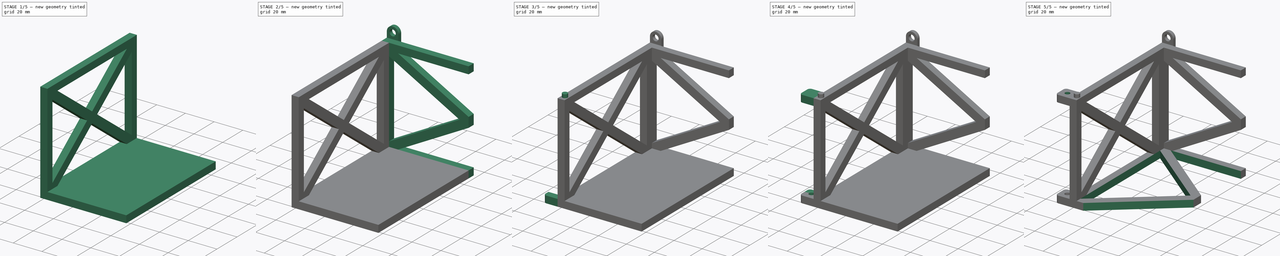
[diagram: build sequence overview — one tinted view per stage of 5, left to right]
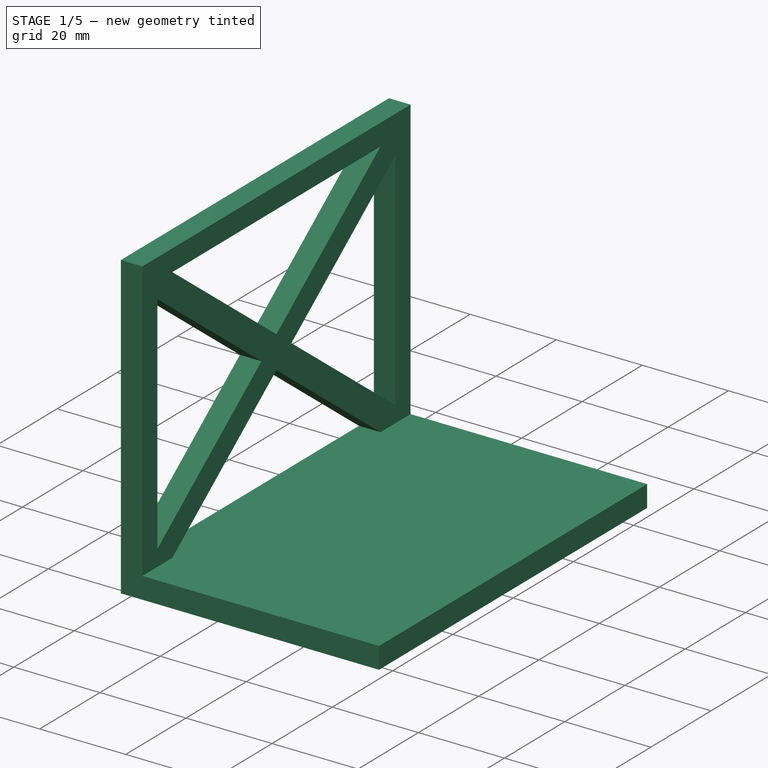
[diagram: stage 1 of 5 — iso view after this stage's code; geometry added in this stage tinted green]
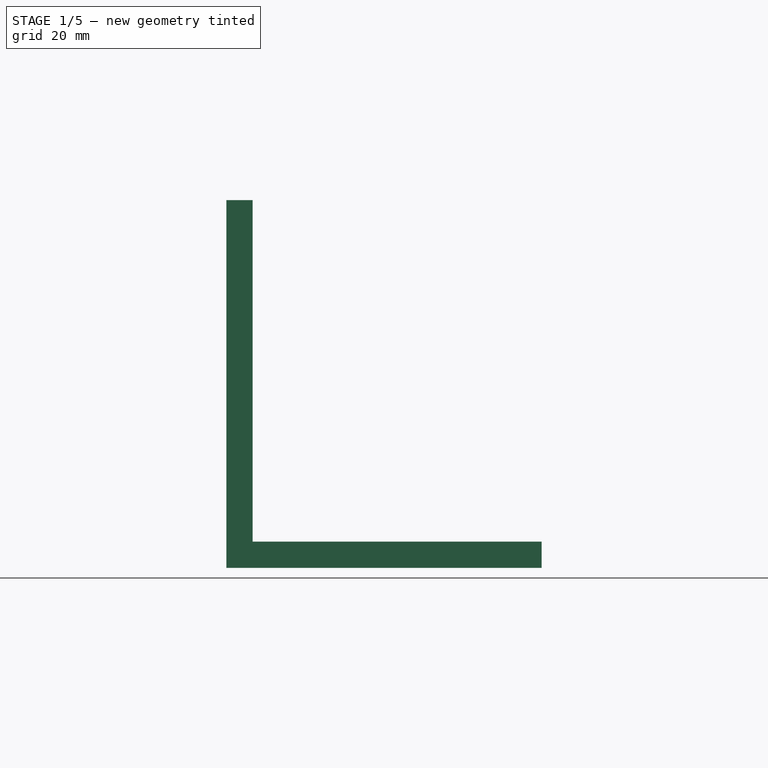
[diagram: stage 1 of 5 — front view after this stage's code; geometry added in this stage tinted green]
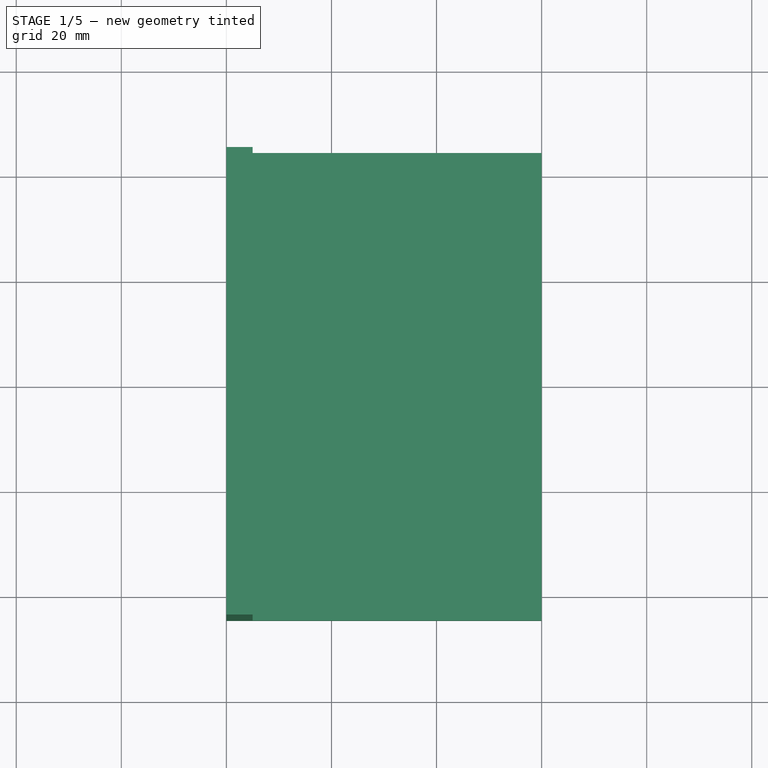
[diagram: stage 1 of 5 — top view after this stage's code; geometry added in this stage tinted green]
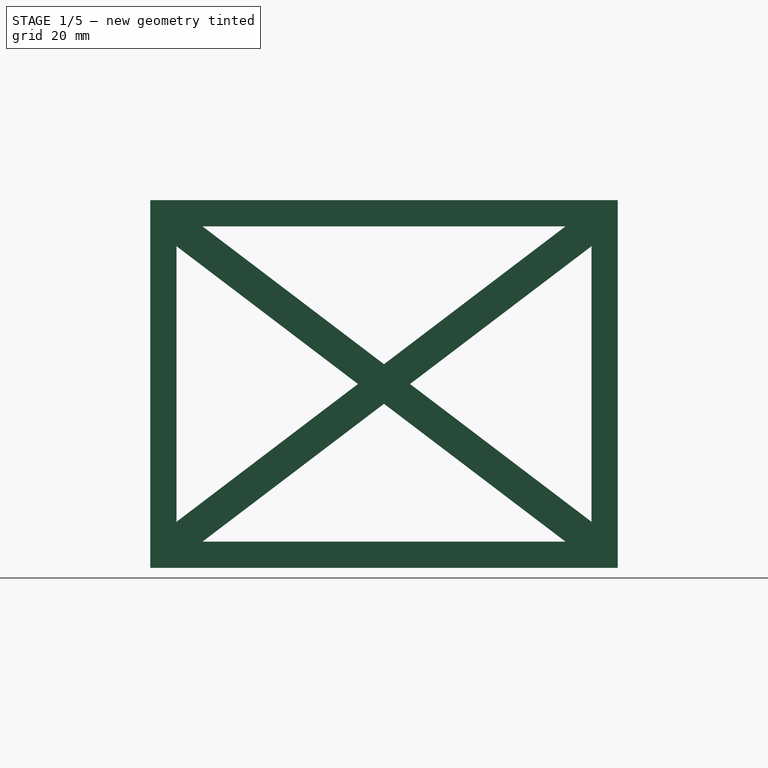
[diagram: stage 1 of 5 — right view after this stage's code; geometry added in this stage tinted green]
FCSTD DOCUMENT  (FreeCAD 0.19R)
Label: Jetson_box_test
License: All rights reserved
LicenseURL: http://en.wikipedia.org/wiki/All_rights_reserved
objects: Sketcher::SketchObject×14, PartDesign::Pad×8, PartDesign::Mirrored×7, PartDesign::Pocket×4, PartDesign::Hole×2, PartDesign::MultiTransform×1, PartDesign::Body×1
note: 51 computed .brp shape members not serialized (recipe doc carries the construction recipe); baked Part::Feature solids carry a one-line shape summary decoded from their .brp

FEATURE [Sketcher::SketchObject] Sketch  label="quart_floor_sketch"
  FullyConstrained = true
  MapMode = 5
  Support = -> [XY_Plane]
  sketch-geometry (4):
    g0: LineSegment StartX=0 StartY=0 StartZ=0 EndX=-55 EndY=0 EndZ=0
    g1: LineSegment StartX=-55 StartY=0 StartZ=0 EndX=-55 EndY=-44.5 EndZ=0
    g2: LineSegment StartX=-55 StartY=-44.5 StartZ=0 EndX=0 EndY=-44.5 EndZ=0
    g3: LineSegment StartX=0 StartY=-44.5 StartZ=0 EndX=0 EndY=0 EndZ=0
  constraints (11):
    c: Coincident(g0,g1)
    c: Coincident(g1,g2)
    c: Coincident(g2,g3)
    c: Coincident(g3,g0)
    c: Horizontal(g0)
    c: Horizontal(g2)
    c: Vertical(g1)
    c: Vertical(g3)
    c: Coincident(g0,g-1)
    c: DistanceY(g1,g1) = 44.5
    c: DistanceX(g2,g2) = 55
FEATURE [PartDesign::Pad] Pad  label="quart_floor"
  Direction = (1,1,1)
  Length = 5
  Length2 = 100
  Profile = -> Sketch
  Type = 0
FEATURE [PartDesign::Mirrored] Mirrored  label="half_floor"
  BaseFeature = -> Pad
  MirrorPlane = -> XZ_Plane
  Originals = -> [Pad]
FEATURE [Sketcher::SketchObject] Sketch001  label="quart_left_wall_sketch"
  ExternalGeometry = -> [Mirrored]
  FullyConstrained = true
  MapMode = 5
  Placement = pos=(-55,0,0) rot=(0.57735,-0.57735,-0.57735;2.0944rad)
  Support = -> [Mirrored]
  sketch-geometry (14):
    g0: LineSegment StartX=0 StartY=0 StartZ=0 EndX=44.5 EndY=0 EndZ=0
    g1: LineSegment StartX=44.5 StartY=0 StartZ=0 EndX=44.5 EndY=35 EndZ=0
    g2: LineSegment StartX=44.5 StartY=35 StartZ=0 EndX=0 EndY=35 EndZ=0
    g3: LineSegment StartX=0 StartY=35 StartZ=0 EndX=0 EndY=0 EndZ=0
    g4: LineSegment StartX=44.5 StartY=35 StartZ=0 EndX=44.5 EndY=5 EndZ=0
    g5: LineSegment StartX=0 StartY=35 StartZ=0 EndX=39.5 EndY=5 EndZ=0
    g6: LineSegment StartX=4.96009 StartY=35 StartZ=0 EndX=39.5 EndY=8.76716 EndZ=0
    g7: LineSegment StartX=0 StartY=31.2328 StartZ=0 EndX=34.5399 EndY=5 EndZ=0
    g8: LineSegment StartX=39.5 StartY=35 StartZ=0 EndX=39.5 EndY=8.76716 EndZ=0
    g9: LineSegment StartX=39.5 StartY=35 StartZ=0 EndX=44.5 EndY=35 EndZ=0
    g10: LineSegment StartX=0 StartY=5 StartZ=0 EndX=34.5399 EndY=5 EndZ=0
    g11: LineSegment StartX=0 StartY=0 StartZ=0 EndX=0 EndY=5 EndZ=0
    g12: LineSegment StartX=0 StartY=31.2328 StartZ=0 EndX=0 EndY=35 EndZ=0
    g13: LineSegment StartX=4.96009 StartY=35 StartZ=0 EndX=0 EndY=35 EndZ=0
  constraints (37):
    c: Coincident(g0,g1)
    c: Coincident(g1,g2)
    c: Coincident(g2,g3)
    c: Coincident(g3,g0)
    c: Horizontal(g0)
    c: Horizontal(g2)
    c: Vertical(g1)
    c: Vertical(g3)
    c: Coincident(g0,g-1)
    c: Vertical(g-3,g0)
    c: Coincident(g4,g1)
    c: DistanceY(g4,g4) = 30
    c: Coincident(g5,g2)
    c: PointOnObject(g6,g2)
    c: PointOnObject(g7,g3)
    c: PointOnObject(g7,g-3)
    c: Parallel(g6,g5)
    c: Parallel(g7,g5)
    c: Distance(g6,g5) = 3
    c: Distance(g7,g5) = 3
    c: PointOnObject(g8,g2)
    c: Vertical(g8)
    c: Coincident(g9,g8)
    c: Coincident(g9,g1)
    c: DistanceX(g9,g9) = 5
    c: Coincident(g8,g6)
    c: Coincident(g10,g-3)
    c: Coincident(g10,g7)
    c: Coincident(g11,g0)
    c: Coincident(g11,g10)
    c: Coincident(g12,g7)
    c: Coincident(g12,g2)
    c: Coincident(g13,g6)
    c: Coincident(g13,g12)
    c: Coincident(g4,g-3)
    c: PointOnObject(g5,g-3)
    c: Vertical(g5,g8)
FEATURE [PartDesign::Pad] Pad001  label="quart_left_wall"
  BaseFeature = -> Mirrored
  Direction = (1,1,1)
  Length = 5
  Length2 = 100
  Profile = -> Sketch001
  Type = 0
FEATURE [PartDesign::Mirrored] Mirrored001
  MirrorPlane = -> Sketch001 [V_Axis]
FEATURE [PartDesign::Mirrored] Mirrored002
  MirrorPlane = -> Pad001 [Face17]
FEATURE [PartDesign::MultiTransform] MultiTransform  label="left_wall"
  BaseFeature = -> Pad001
  Originals = -> [Pad001]
  Transformations = -> [Mirrored001,Mirrored002]
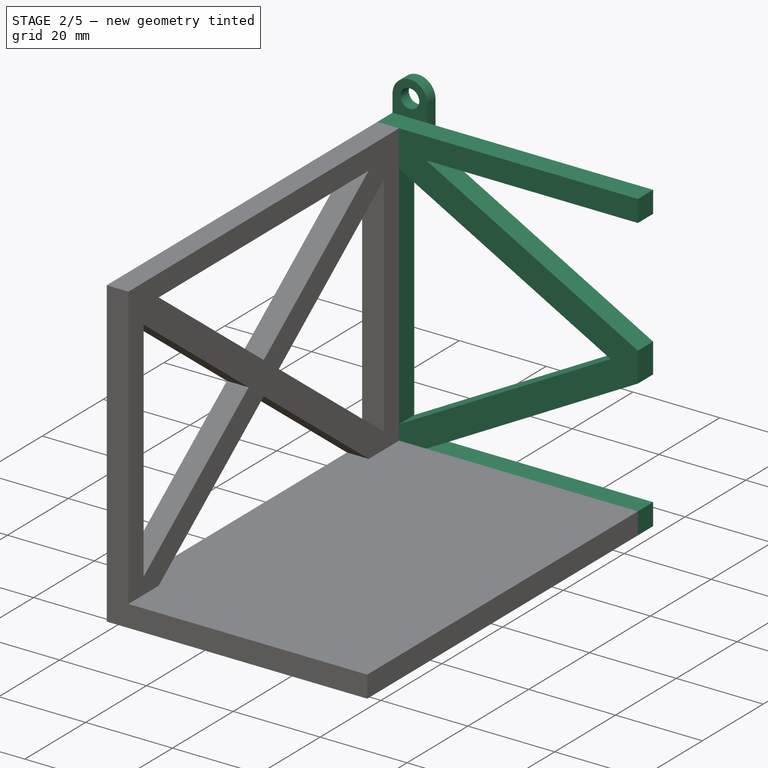
[diagram: stage 2 of 5 — iso view after this stage's code; geometry added in this stage tinted green]
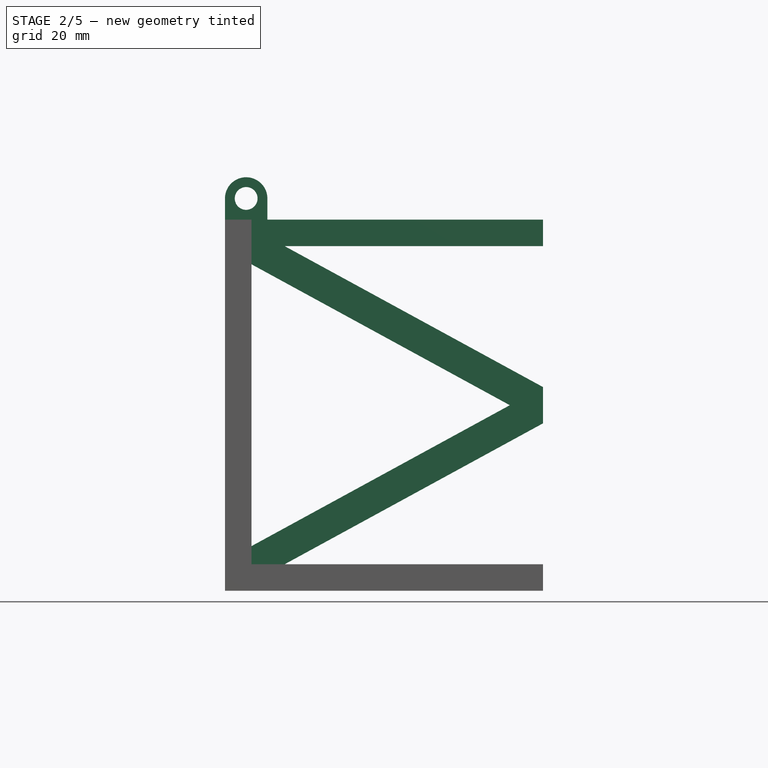
[diagram: stage 2 of 5 — front view after this stage's code; geometry added in this stage tinted green]
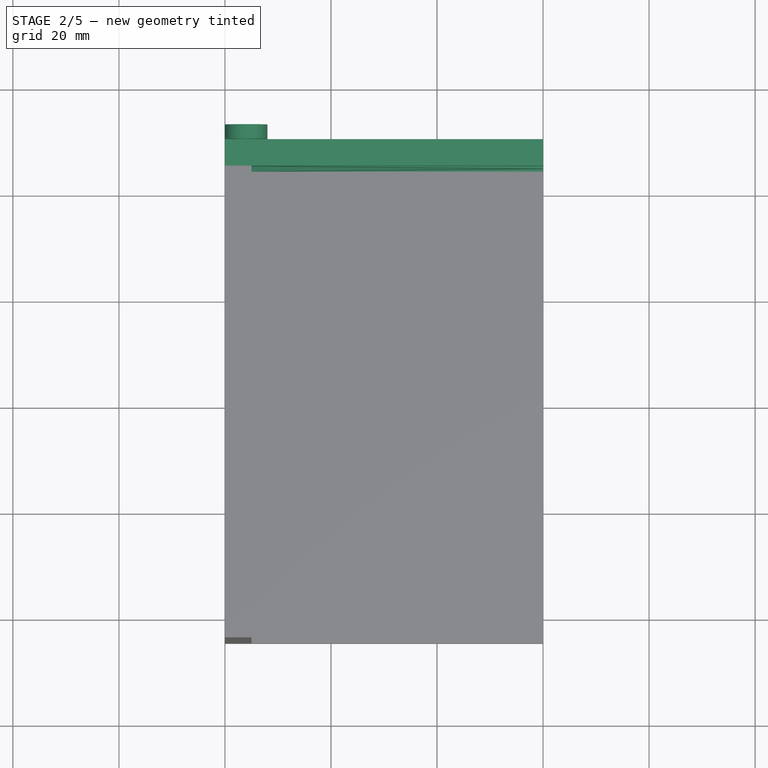
[diagram: stage 2 of 5 — top view after this stage's code; geometry added in this stage tinted green]
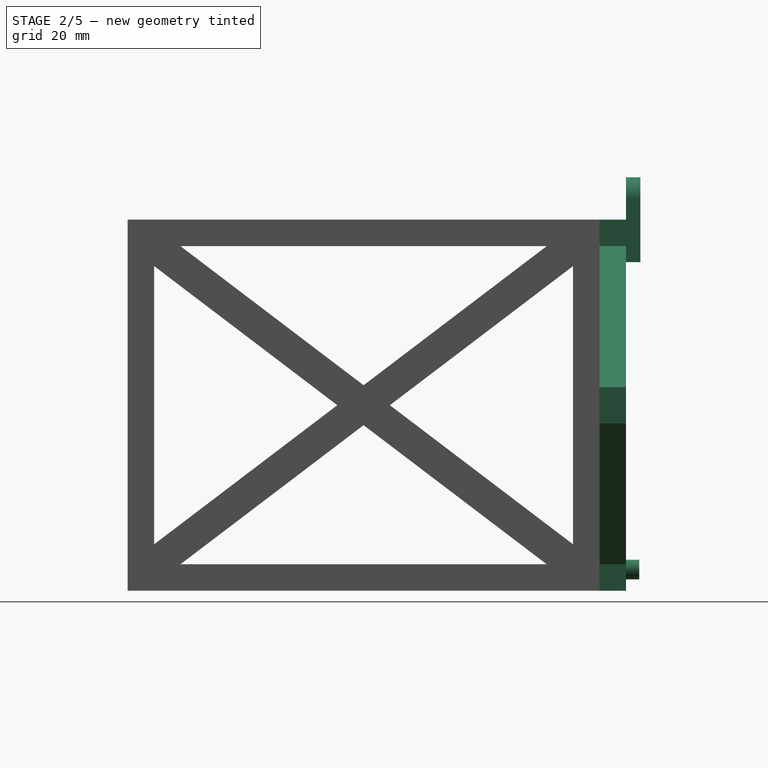
[diagram: stage 2 of 5 — right view after this stage's code; geometry added in this stage tinted green]
FEATURE [Sketcher::SketchObject] Sketch002  label="quart_back_wall_sketch"
  ExternalGeometry = -> [MultiTransform]
  FullyConstrained = true
  MapMode = 5
  Placement = pos=(0,44.5,1.96e-14) rot=(0,0.707107,0.707107;3.14159rad)
  Support = -> [MultiTransform]
  sketch-geometry (15):
    g0: LineSegment StartX=55 StartY=35 StartZ=0 EndX=0 EndY=35 EndZ=0
    g1: LineSegment StartX=0 StartY=35 StartZ=0 EndX=0 EndY=5 EndZ=0
    g2: LineSegment StartX=0 StartY=5 StartZ=0 EndX=55 EndY=5 EndZ=0
    g3: LineSegment StartX=55 StartY=5 StartZ=0 EndX=55 EndY=35 EndZ=0
    g4: LineSegment StartX=0 StartY=35 StartZ=0 EndX=55 EndY=5 EndZ=0
    g5: LineSegment StartX=6.26498 StartY=35 StartZ=0 EndX=55 EndY=8.41726 EndZ=0
    g6: LineSegment StartX=0 StartY=31.5827 StartZ=0 EndX=48.735 EndY=5 EndZ=0
    g7: LineSegment StartX=48.735 StartY=5 StartZ=0 EndX=0 EndY=5 EndZ=0
    g8: LineSegment StartX=0 StartY=5 StartZ=0 EndX=0 EndY=0 EndZ=0
    g9: LineSegment StartX=0 StartY=0 StartZ=0 EndX=60 EndY=0 EndZ=0
    g10: LineSegment StartX=60 StartY=0 StartZ=0 EndX=60 EndY=35 EndZ=0
    g11: LineSegment StartX=60 StartY=35 StartZ=0 EndX=55 EndY=35 EndZ=0
    g12: LineSegment StartX=55 StartY=35 StartZ=0 EndX=55 EndY=8.41726 EndZ=0
    g13: LineSegment StartX=0 StartY=31.5827 StartZ=0 EndX=0 EndY=35 EndZ=0
    g14: LineSegment StartX=0 StartY=35 StartZ=0 EndX=6.26498 EndY=35 EndZ=0
  constraints (36):
    c: Coincident(g0,g1)
    c: Coincident(g1,g2)
    c: Coincident(g2,g3)
    c: Coincident(g3,g0)
    c: Horizontal(g0)
    c: Horizontal(g2)
    c: Vertical(g1)
    c: Vertical(g3)
    c: Coincident(g0,g-5)
    c: Coincident(g1,g-3)
    c: Coincident(g4,g0)
    c: Coincident(g4,g2)
    c: PointOnObject(g5,g0)
    c: PointOnObject(g5,g3)
    c: PointOnObject(g6,g1)
    c: PointOnObject(g6,g2)
    c: Parallel(g5,g4)
    c: Parallel(g6,g4)
    c: Distance(g5,g4) = 3
    c: Distance(g6,g4) = 3
    c: Coincident(g7,g6)
    c: Coincident(g7,g1)
    c: Coincident(g8,g7)
    c: Coincident(g8,g-1)
    c: Coincident(g9,g8)
    c: Coincident(g9,g-4)
    c: Coincident(g10,g9)
    c: Coincident(g10,g-4)
    c: Coincident(g11,g10)
    c: Coincident(g11,g0)
    c: Coincident(g12,g11)
    c: Coincident(g12,g5)
    c: Coincident(g13,g6)
    c: Coincident(g13,g0)
    c: Coincident(g14,g13)
    c: Coincident(g14,g5)
FEATURE [PartDesign::Pad] Pad002  label="quart_back_wall"
  BaseFeature = -> MultiTransform
  Direction = (1,1,1)
  Length = 5
  Length2 = 100
  Profile = -> Sketch002
  Type = 0
FEATURE [PartDesign::Mirrored] Mirrored003  label="half_back_wall"
  BaseFeature = -> Pad002
  MirrorPlane = -> Pad002 [Face19]
  Originals = -> [Pad002]
FEATURE [Sketcher::SketchObject] Sketch003  label="back_dowel_pin_sketch"
  ExternalGeometry = -> [Mirrored003]
  FullyConstrained = true
  MapMode = 5
  Placement = pos=(-5e-16,49.5,2.13e-14) rot=(0,0.707107,0.707107;3.14159rad)
  Support = -> [Mirrored003]
  sketch-geometry (2):
    g0: GeomPoint X=56 Y=4 Z=0
    g1: Circle CenterX=56 CenterY=4 CenterZ=0 NormalX=0 NormalY=0 NormalZ=1 AngleXU=0 Radius=1.85
  constraints (4):
    c: Distance(g0,g-3) = 4
    c: Distance(g0,g-4) = 4
    c: Coincident(g1,g0)
    c: Radius(g1) = 1.85
FEATURE [PartDesign::Pad] Pad003  label="back_dowel_pin"
  BaseFeature = -> Mirrored003
  Direction = (1,1,1)
  Length = 2.5
  Length2 = 100
  Profile = -> Sketch003
  Type = 0
FEATURE [Sketcher::SketchObject] Sketch004  label="back_dowel_hole_sketch"
  ExternalGeometry = -> [Pad003]
  FullyConstrained = true
  MapMode = 5
  Placement = pos=(-5e-16,49.5,2.28e-14) rot=(0,0.707107,0.707107;3.14159rad)
  Support = -> [Pad003]
  sketch-geometry (6):
    g0: LineSegment StartX=60 StartY=62 StartZ=0 EndX=60 EndY=74 EndZ=0
    g1: GeomPoint X=56 Y=74 Z=0
    g2: ArcOfCircle CenterX=56 CenterY=74 CenterZ=0 NormalX=0 NormalY=0 NormalZ=1 AngleXU=0 Radius=4 StartAngle=-1.8e-15 EndAngle=3.14159
    g3: LineSegment StartX=52 StartY=74 StartZ=0 EndX=52 EndY=62 EndZ=0
    g4: LineSegment StartX=52 StartY=62 StartZ=0 EndX=60 EndY=62 EndZ=0
    g5: Circle CenterX=56 CenterY=74 CenterZ=0 NormalX=0 NormalY=0 NormalZ=1 AngleXU=0 Radius=2.15
  constraints (16):
    c: PointOnObject(g0,g-4)
    c: Vertical(g0)
    c: DistanceY(g0,g-4) = 8
    c: Distance(g1,g-3) = 4
    c: Distance(g1,g0) = 4
    c: Horizontal(g1,g0)
    c: Coincident(g2,g1)
    c: Coincident(g2,g0)
    c: Coincident(g3,g2)
    c: Vertical(g3)
    c: Tangent(g2,g3)
    c: Coincident(g4,g3)
    c: Coincident(g4,g0)
    c: Horizontal(g4)
    c: Coincident(g5,g2)
    c: Radius(g5) = 2.15
FEATURE [PartDesign::Pad] Pad004  label="back_dowel_hole"
  BaseFeature = -> Pad003
  Direction = (1,1,1)
  Length = 2.7
  Length2 = 100
  Profile = -> Sketch004
  Type = 0
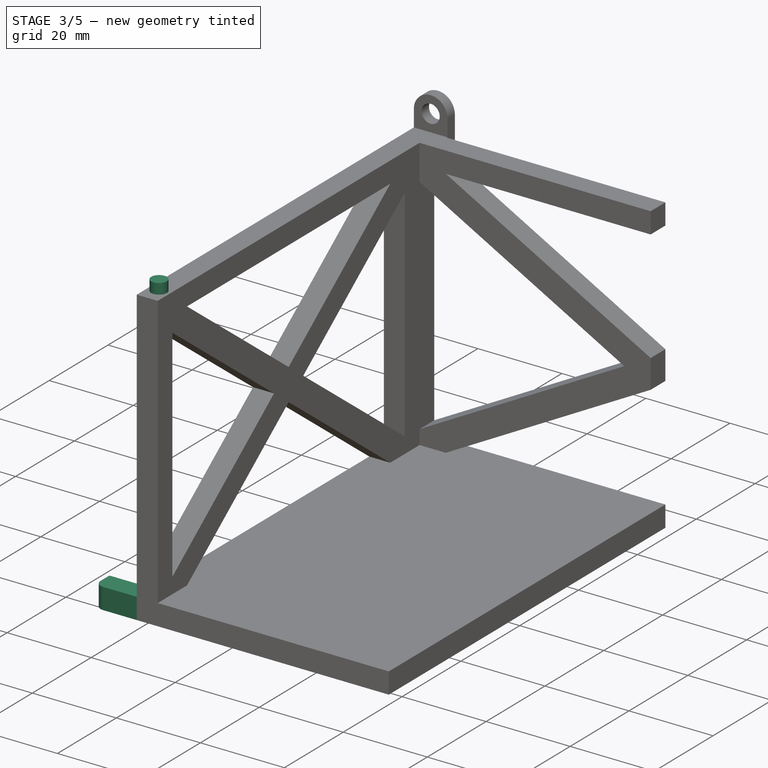
[diagram: stage 3 of 5 — iso view after this stage's code; geometry added in this stage tinted green]
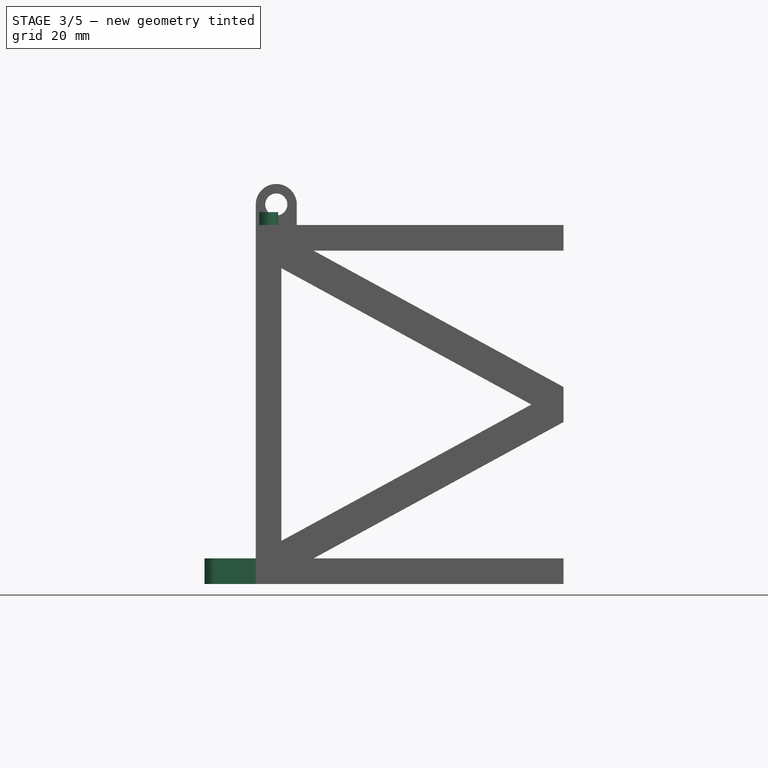
[diagram: stage 3 of 5 — front view after this stage's code; geometry added in this stage tinted green]
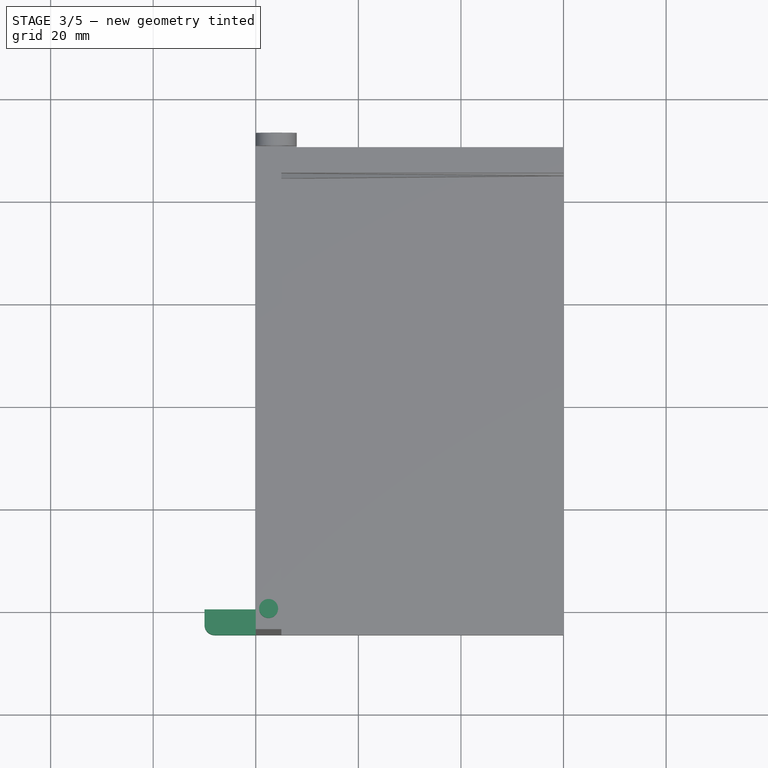
[diagram: stage 3 of 5 — top view after this stage's code; geometry added in this stage tinted green]
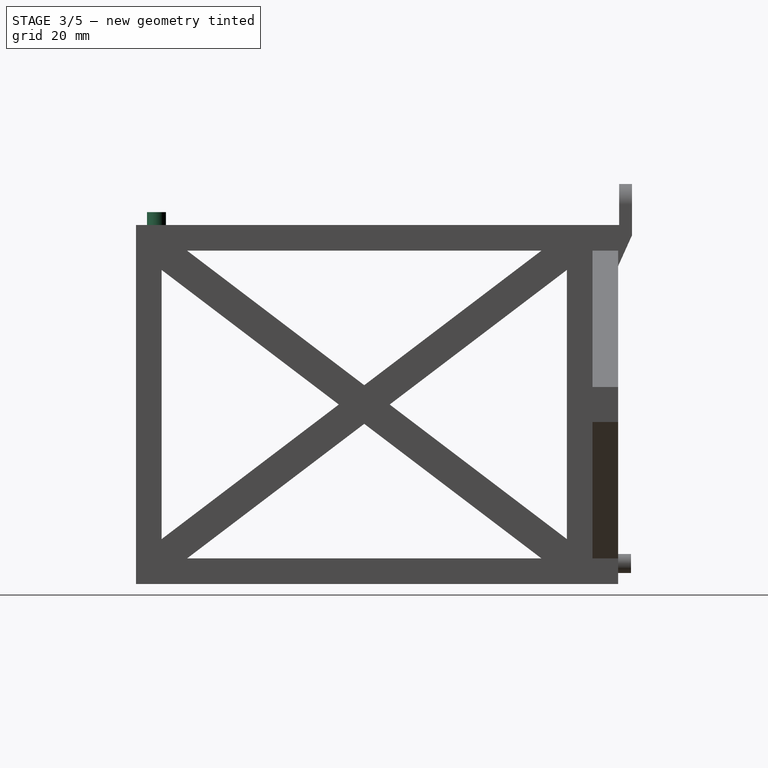
[diagram: stage 3 of 5 — right view after this stage's code; geometry added in this stage tinted green]
FEATURE [Sketcher::SketchObject] Sketch005  label="stiffener_cut_and_peel_sketch"
  ExternalGeometry = -> [Pad004]
  FullyConstrained = true
  MapMode = 5
  Placement = pos=(-60,-6e-16,0) rot=(0.57735,-0.57735,-0.57735;2.0944rad)
  Support = -> [Pad004]
  sketch-geometry (7):
    g0: LineSegment StartX=-52.2 StartY=68 StartZ=0 EndX=-49.5 EndY=62 EndZ=0
    g1: LineSegment StartX=-49.5 StartY=78 StartZ=0 EndX=-49.7 EndY=78 EndZ=0
    g2: LineSegment StartX=-49.7 StartY=78 StartZ=0 EndX=-49.7 EndY=70 EndZ=0
    g3: LineSegment StartX=-49.7 StartY=70 StartZ=0 EndX=-49.5 EndY=70 EndZ=0
    g4: LineSegment StartX=-49.5 StartY=70 StartZ=0 EndX=-49.5 EndY=78 EndZ=0
    g5: LineSegment StartX=-52.2 StartY=68 StartZ=0 EndX=-52.2 EndY=62 EndZ=0
    g6: LineSegment StartX=-49.5 StartY=62 StartZ=0 EndX=-52.2 EndY=62 EndZ=0
  constraints (17):
    c: PointOnObject(g0,g-3)
    c: Coincident(g0,g-4)
    c: Coincident(g1,g2)
    c: Coincident(g2,g3)
    c: Coincident(g3,g4)
    c: Coincident(g4,g1)
    c: Horizontal(g1)
    c: Horizontal(g3)
    c: Vertical(g2)
    c: Coincident(g1,g-5)
    c: Coincident(g3,g-4)
    c: DistanceX(g1,g1) = 0.2
    c: Coincident(g5,g0)
    c: Coincident(g5,g-3)
    c: Coincident(g6,g0)
    c: Coincident(g6,g5)
    c: DistanceY(g0,g3) = 2
FEATURE [PartDesign::Pocket] Pocket  label="stiffener_cut_and_peel"
  BaseFeature = -> Pad004
  Length = 5
  Length2 = 100
  Profile = -> Sketch005
  Type = 1
FEATURE [Sketcher::SketchObject] Sketch006  label="top_dowel_pin_sketch"
  ExternalGeometry = -> [Pocket]
  FullyConstrained = true
  MapMode = 5
  Placement = pos=(0,0,70) rot=(0,0,1;0rad)
  Support = -> [Pocket]
  sketch-geometry (4):
    g0: LineSegment StartX=-60 StartY=-44.5 StartZ=0 EndX=-57.5 EndY=-44.5 EndZ=0
    g1: LineSegment StartX=-57.5 StartY=-44.5 StartZ=0 EndX=-55 EndY=-44.5 EndZ=0
    g2: GeomPoint X=-57.5 Y=-40.5 Z=0
    g3: Circle CenterX=-57.5 CenterY=-40.5 CenterZ=0 NormalX=0 NormalY=0 NormalZ=1 AngleXU=0 Radius=1.85
  constraints (9):
    c: Coincident(g0,g-3)
    c: PointOnObject(g0,g-3)
    c: Coincident(g1,g0)
    c: Coincident(g1,g-3)
    c: Equal(g0,g1)
    c: Vertical(g2,g0)
    c: DistanceY(g0,g2) = 4
    c: Coincident(g3,g2)
    c: Radius(g3) = 1.85
FEATURE [PartDesign::Pad] Pad005  label="top_dowel_pin"
  BaseFeature = -> Pocket
  Direction = (1,1,1)
  Length = 2.5
  Length2 = 100
  Profile = -> Sketch006
  Type = 0
FEATURE [Sketcher::SketchObject] Sketch007  label="bot_dowel_hole_sketch"
  ExternalGeometry = -> [Pad005]
  FullyConstrained = true
  MapMode = 5
  Placement = pos=(0,0,0) rot=(1,0,0;3.14159rad)
  Support = -> [Pad005]
  sketch-geometry (4):
    g0: LineSegment StartX=-60 StartY=44.5 StartZ=0 EndX=-57.5 EndY=44.5 EndZ=0
    g1: LineSegment StartX=-57.5 StartY=44.5 StartZ=0 EndX=-55 EndY=44.5 EndZ=0
    g2: GeomPoint X=-57.5 Y=40.5 Z=0
    g3: Circle CenterX=-57.5 CenterY=40.5 CenterZ=0 NormalX=0 NormalY=0 NormalZ=1 AngleXU=0 Radius=2.15
  constraints (9):
    c: Coincident(g-3,g0)
    c: Coincident(g0,g1)
    c: Coincident(g1,g-3)
    c: PointOnObject(g0,g-3)
    c: Equal(g0,g1)
    c: Vertical(g0,g2)
    c: DistanceY(g2,g0) = 4
    c: Coincident(g3,g2)
    c: Radius(g3) = 2.15
FEATURE [PartDesign::Pocket] Pocket001  label="bot_dowel_hole"
  BaseFeature = -> Pad005
  Length = 3
  Length2 = 100
  Profile = -> Sketch007
  Type = 0
FEATURE [Sketcher::SketchObject] Sketch008  label="half_bot_ear_sketch"
  ExternalGeometry = -> [Pocket001]
  FullyConstrained = true
  MapMode = 5
  Placement = pos=(0,0,0) rot=(1,0,0;3.14159rad)
  Support = -> [Pocket001]
  sketch-geometry (6):
    g0: LineSegment StartX=-60 StartY=44.5 StartZ=0 EndX=-68 EndY=44.5 EndZ=0
    g1: LineSegment StartX=-70 StartY=42.5 StartZ=0 EndX=-70 EndY=39.5 EndZ=0
    g2: LineSegment StartX=-70 StartY=39.5 StartZ=0 EndX=-60 EndY=39.5 EndZ=0
    g3: LineSegment StartX=-60 StartY=39.5 StartZ=0 EndX=-60 EndY=44.5 EndZ=0
    g4: ArcOfCircle CenterX=-68 CenterY=42.5 CenterZ=0 NormalX=0 NormalY=0 NormalZ=1 AngleXU=0 Radius=2 StartAngle=1.5708 EndAngle=3.14159
    g5: GeomPoint X=-70 Y=44.5 Z=0
  constraints (15):
    c: Coincident(g1,g2)
    c: Coincident(g2,g3)
    c: Coincident(g3,g0)
    c: Horizontal(g0)
    c: Horizontal(g2)
    c: Vertical(g1)
    c: Vertical(g3)
    c: Coincident(g0,g-4)
    c: DistanceY(g3,g3) = 5
    c: DistanceX(g2,g2) = 10
    c: PointOnObject(g5,g0)
    c: PointOnObject(g5,g1)
    c: Tangent(g0,g4) = -1.5708
    c: Tangent(g1,g4) = -1.5708
    c: Radius(g4) = 2
FEATURE [PartDesign::Pad] Pad006  label="half_bot_ear"
  BaseFeature = -> Pocket001
  Direction = (1,1,1)
  Length = 5
  Length2 = 100
  Profile = -> Sketch008
  Reversed = true
  Type = 0
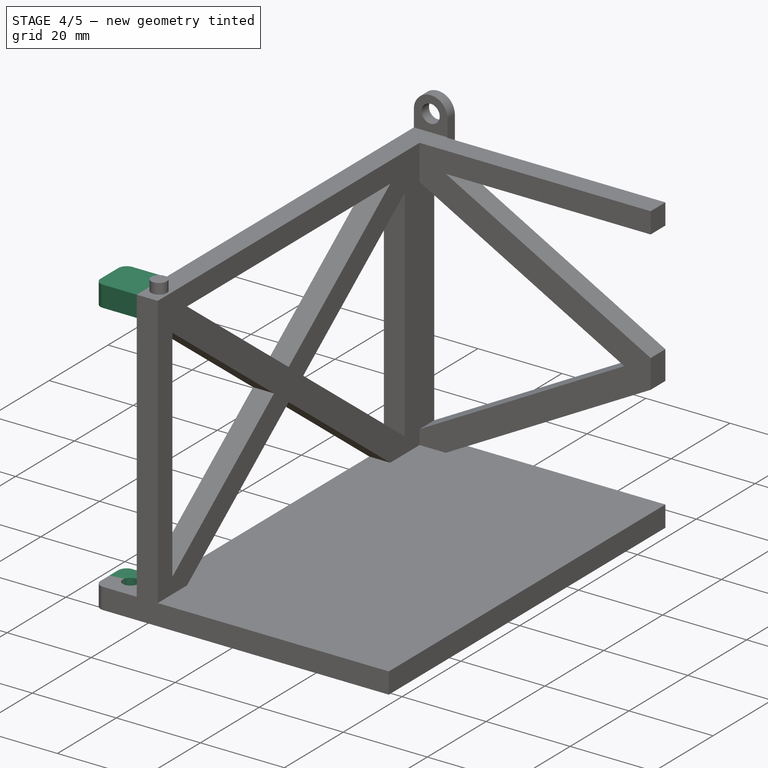
[diagram: stage 4 of 5 — iso view after this stage's code; geometry added in this stage tinted green]
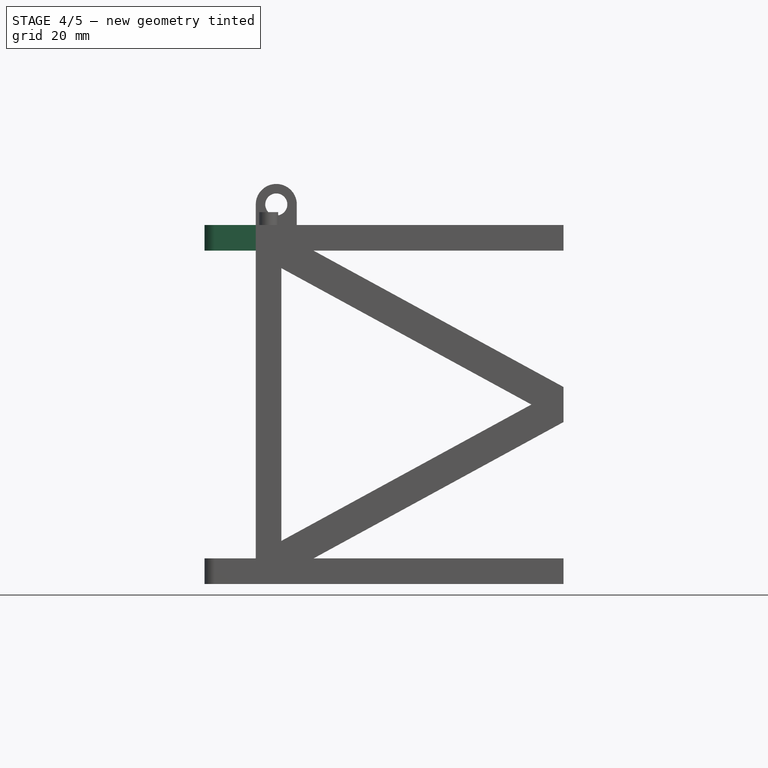
[diagram: stage 4 of 5 — front view after this stage's code; geometry added in this stage tinted green]
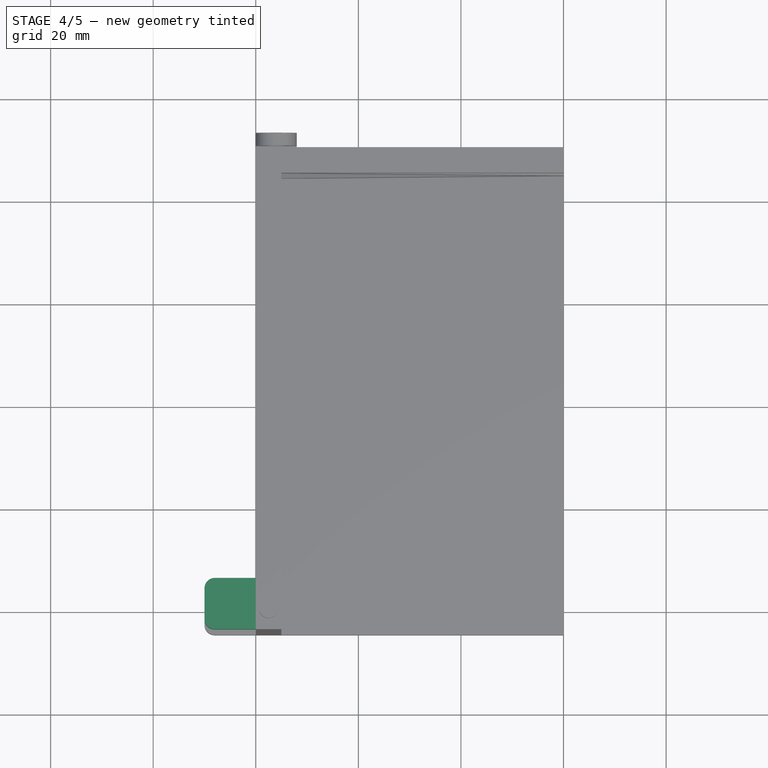
[diagram: stage 4 of 5 — top view after this stage's code; geometry added in this stage tinted green]
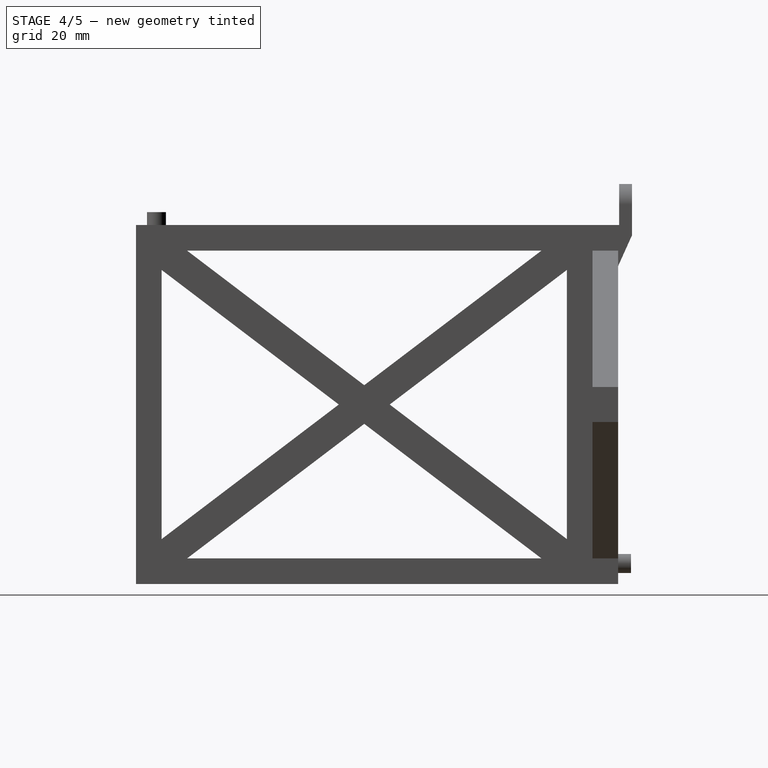
[diagram: stage 4 of 5 — right view after this stage's code; geometry added in this stage tinted green]
FEATURE [PartDesign::Mirrored] Mirrored004  label="bot_ear"
  BaseFeature = -> Pad006
  MirrorPlane = -> Pad006 [Face66]
  Originals = -> [Pad006]
FEATURE [Sketcher::SketchObject] Sketch009  label="bot_M3_clearance_sketch"
  ExternalGeometry = -> [Mirrored004]
  FullyConstrained = true
  MapMode = 5
  Placement = pos=(0,0,0) rot=(1,0,0;3.14159rad)
  Support = -> [Mirrored004]
  sketch-geometry (2):
    g0: GeomPoint X=-65 Y=39.5 Z=0
    g1: Circle CenterX=-65 CenterY=39.5 CenterZ=0 NormalX=0 NormalY=0 NormalZ=1 AngleXU=0 Radius=1
  constraints (3):
    c: Symmetric(g-3,g-3,g0)
    c: Radius(g1) = 1
    c: Coincident(g1,g0)
FEATURE [PartDesign::Hole] Hole  label="bot_M3_clearance"
  BaseFeature = -> Mirrored004
  Depth = 25
  DepthType = 0
  Diameter = 3.6
  DrillForDepth = false
  DrillPoint = 1
  DrillPointAngle = 118
  HoleCutCountersinkAngle = 90
  HoleCutCustomValues = false
  HoleCutDepth = 0
  HoleCutDiameter = 6.1
  HoleCutType = 0
  ModelActualThread = false
  Profile = -> Sketch009
  Tapered = false
  TaperedAngle = 90
  ThreadAngle = 0
  ThreadClass = 0
  ThreadCutOffInner = 0
  ThreadCutOffOuter = 0
  ThreadDirection = 0
  ThreadFit = 2
  ThreadPitch = 0
  ThreadSize = 9
  ThreadType = 1
  Threaded = false
FEATURE [Sketcher::SketchObject] Sketch010  label="half_top_ear_sketch"
  ExternalGeometry = -> [Hole]
  FullyConstrained = true
  MapMode = 5
  Placement = pos=(0,0,70) rot=(0,0,1;0rad)
  Support = -> [Hole]
  sketch-geometry (6):
    g0: LineSegment StartX=-60 StartY=-44.5 StartZ=0 EndX=-68 EndY=-44.5 EndZ=0
    g1: LineSegment StartX=-70 StartY=-42.5 StartZ=0 EndX=-70 EndY=-39.5 EndZ=0
    g2: LineSegment StartX=-70 StartY=-39.5 StartZ=0 EndX=-60 EndY=-39.5 EndZ=0
    g3: LineSegment StartX=-60 StartY=-39.5 StartZ=0 EndX=-60 EndY=-44.5 EndZ=0
    g4: ArcOfCircle CenterX=-68 CenterY=-42.5 CenterZ=0 NormalX=0 NormalY=0 NormalZ=1 AngleXU=0 Radius=2 StartAngle=3.14159 EndAngle=4.71239
    g5: GeomPoint X=-70 Y=-44.5 Z=0
  constraints (14):
    c: Coincident(g1,g2)
    c: Coincident(g2,g3)
    c: Coincident(g3,g0)
    c: Horizontal(g0)
    c: Horizontal(g2)
    c: Vertical(g1)
    c: Vertical(g3)
    c: Coincident(g0,g-3)
    c: Coincident(g1,g-4)
    c: PointOnObject(g5,g1)
    c: PointOnObject(g5,g0)
    c: Tangent(g1,g4) = 1.5708
    c: Tangent(g0,g4) = 1.5708
    c: Equal(g4,g-5)
FEATURE [PartDesign::Pad] Pad007  label="half_top_ear"
  BaseFeature = -> Hole
  Direction = (1,1,1)
  Length = 5
  Length2 = 100
  Profile = -> Sketch010
  Reversed = true
  Type = 0
FEATURE [PartDesign::Mirrored] Mirrored005  label="top_ear"
  BaseFeature = -> Pad007
  MirrorPlane = -> Pad007 [Face88]
  Originals = -> [Pad007]
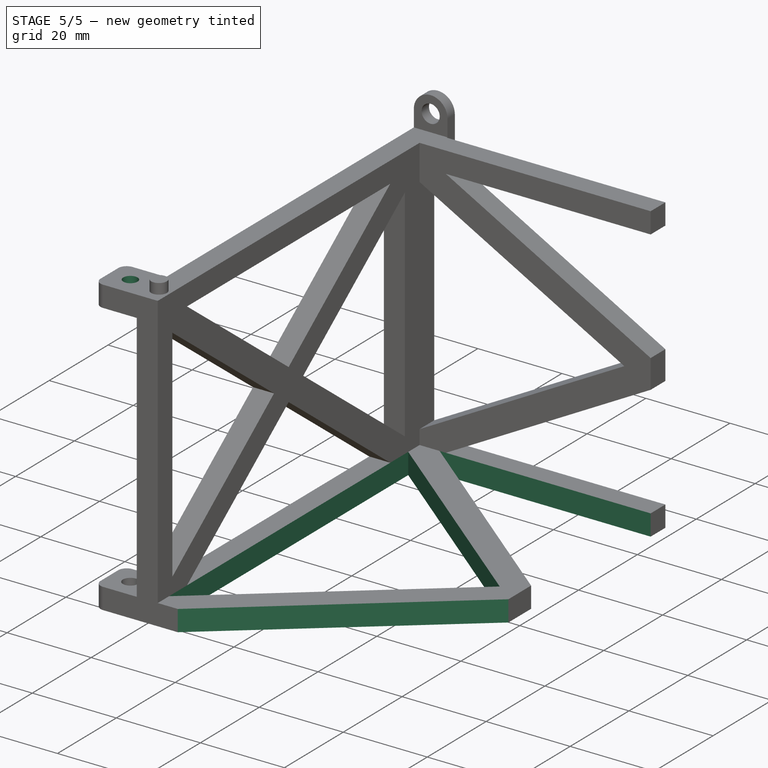
[diagram: stage 5 of 5 — iso view after this stage's code; geometry added in this stage tinted green]
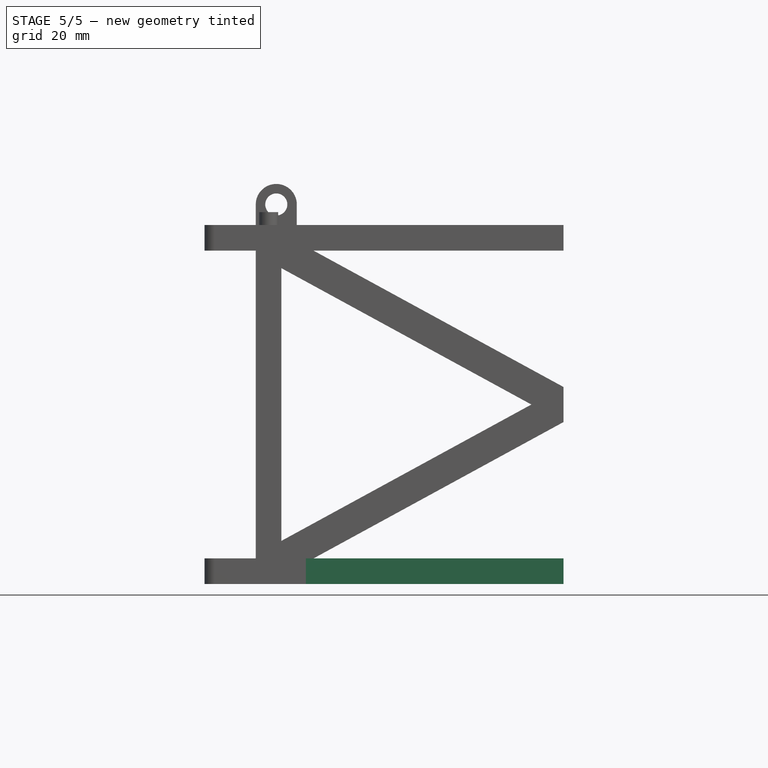
[diagram: stage 5 of 5 — front view after this stage's code; geometry added in this stage tinted green]
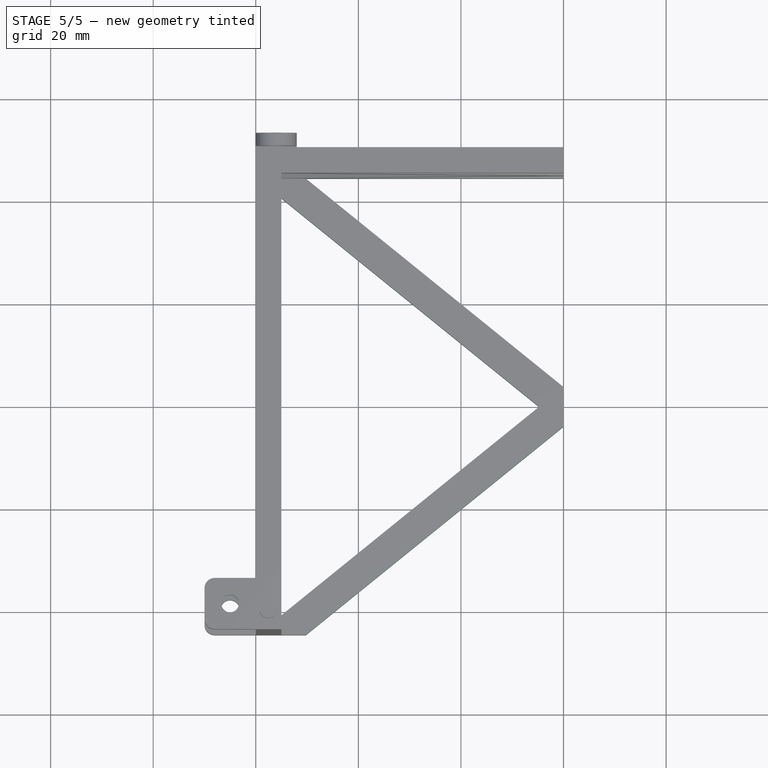
[diagram: stage 5 of 5 — top view after this stage's code; geometry added in this stage tinted green]
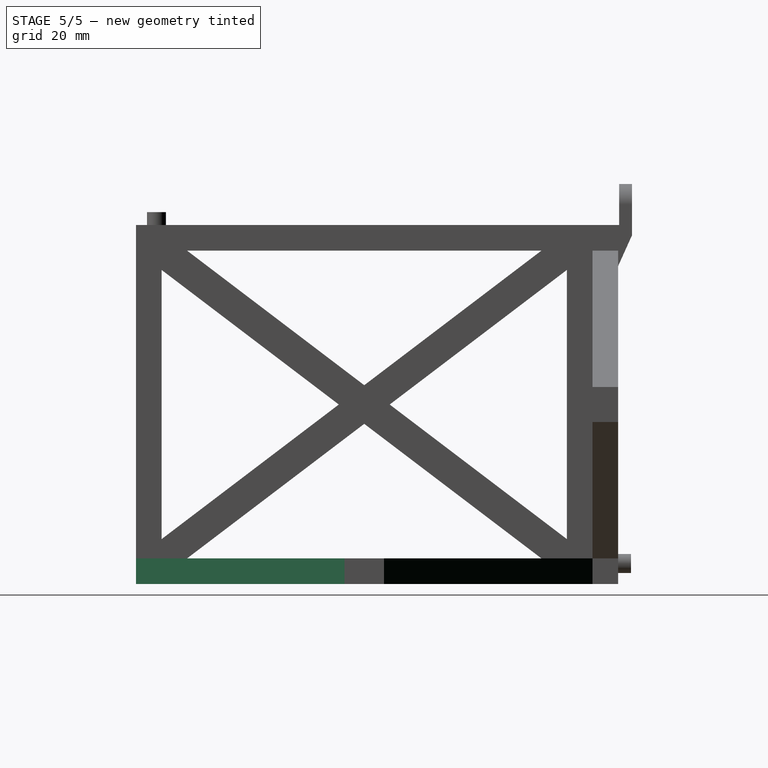
[diagram: stage 5 of 5 — right view after this stage's code; geometry added in this stage tinted green]
FEATURE [Sketcher::SketchObject] Sketch011  label="top_M3_hex_sketch"
  ExternalGeometry = -> [Mirrored005]
  FullyConstrained = true
  MapMode = 5
  Placement = pos=(0,0,65) rot=(1,0,0;3.14159rad)
  Support = -> [Mirrored005]
  sketch-geometry (7):
    g0: LineSegment StartX=-65 StartY=42.8486 StartZ=0 EndX=-67.9 EndY=41.1743 EndZ=0
    g1: LineSegment StartX=-67.9 StartY=41.1743 StartZ=0 EndX=-67.9 EndY=37.8257 EndZ=0
    g2: LineSegment StartX=-67.9 StartY=37.8257 StartZ=0 EndX=-65 EndY=36.1514 EndZ=0
    g3: LineSegment StartX=-65 StartY=36.1514 StartZ=0 EndX=-62.1 EndY=37.8257 EndZ=0
    g4: LineSegment StartX=-62.1 StartY=37.8257 StartZ=0 EndX=-62.1 EndY=41.1743 EndZ=0
    g5: LineSegment StartX=-62.1 StartY=41.1743 StartZ=0 EndX=-65 EndY=42.8486 EndZ=0
    g6: Circle CenterX=-65 CenterY=39.5 CenterZ=0 NormalX=0 NormalY=0 NormalZ=1 AngleXU=0 Radius=3.34863
  constraints (16):
    c: Coincident(g0,g1)
    c: Coincident(g1,g2)
    c: Coincident(g2,g3)
    c: Coincident(g3,g4)
    c: Coincident(g4,g5)
    c: Coincident(g5,g0)
    c: Equal(g0, g1-g5) x5
    c: PointOnObject(g0,g6)
    c: PointOnObject(g1,g6)
    c: PointOnObject(g2,g6)
    c: PointOnObject(g3,g6)
    c: PointOnObject(g4,g6)
    c: PointOnObject(g5,g6)
    c: Coincident(g6,g-3)
    c: Vertical(g6,g0)
    c: DistanceX(g0,g4) = 5.8
FEATURE [PartDesign::Pocket] Pocket002  label="top_M3_hex"
  BaseFeature = -> Mirrored005
  Length = 2.15
  Length2 = 100
  Profile = -> Sketch011
  Type = 0
FEATURE [Sketcher::SketchObject] Sketch012  label="top_M3_clearance_sketch"
  ExternalGeometry = -> [Pocket002]
  FullyConstrained = true
  MapMode = 5
  Placement = pos=(0,0,67.15) rot=(1,0,0;3.14159rad)
  Support = -> [Pocket002]
  sketch-geometry (2):
    g0: GeomPoint X=-65 Y=39.5 Z=0
    g1: Circle CenterX=-65 CenterY=39.5 CenterZ=0 NormalX=0 NormalY=0 NormalZ=1 AngleXU=0 Radius=1
  constraints (3):
    c: Symmetric(g-3,g-4,g0)
    c: Coincident(g1,g0)
    c: Radius(g1) = 1
FEATURE [PartDesign::Hole] Hole001  label="top_M3_clearance"
  BaseFeature = -> Pocket002
  Depth = 25
  DepthType = 1
  Diameter = 3.4
  DrillForDepth = false
  DrillPoint = 1
  DrillPointAngle = 118
  HoleCutCountersinkAngle = 90
  HoleCutCustomValues = false
  HoleCutDepth = 0
  HoleCutDiameter = 6.1
  HoleCutType = 0
  ModelActualThread = false
  Profile = -> Sketch012
  Tapered = false
  TaperedAngle = 90
  ThreadAngle = 0
  ThreadClass = 0
  ThreadCutOffInner = 0
  ThreadCutOffOuter = 0
  ThreadDirection = 0
  ThreadFit = 0
  ThreadPitch = 0
  ThreadSize = 9
  ThreadType = 1
  Threaded = false
FEATURE [Sketcher::SketchObject] Sketch013  label="quart_floor_hole_sketch"
  ExternalGeometry = -> [Hole001]
  FullyConstrained = true
  MapMode = 5
  Placement = pos=(0,0,5) rot=(0,0,1;0rad)
  Support = -> [Hole001]
  sketch-geometry (7):
    g0: LineSegment StartX=0 StartY=0 StartZ=0 EndX=-55 EndY=-44.5 EndZ=0
    g1: LineSegment StartX=0 StartY=-3.85897 StartZ=0 EndX=-50.2305 EndY=-44.5 EndZ=0
    g2: LineSegment StartX=-50.2305 StartY=-44.5 StartZ=0 EndX=0 EndY=-44.5 EndZ=0
    g3: LineSegment StartX=0 StartY=-44.5 StartZ=0 EndX=0 EndY=-3.85897 EndZ=0
    g4: LineSegment StartX=-55 StartY=0 StartZ=0 EndX=-4.76951 EndY=0 EndZ=0
    g5: LineSegment StartX=-4.76951 StartY=0 StartZ=0 EndX=-55 EndY=-40.641 EndZ=0
    g6: LineSegment StartX=-55 StartY=-40.641 StartZ=0 EndX=-55 EndY=0 EndZ=0
  constraints (18):
    c: Coincident(g0,g-1)
    c: Coincident(g0,g-3)
    c: PointOnObject(g1,g-2)
    c: PointOnObject(g1,g-3)
    c: Coincident(g1,g2)
    c: Coincident(g2,g-3)
    c: Coincident(g2,g3)
    c: Coincident(g3,g1)
    c: Parallel(g1,g0)
    c: Distance(g1,g0) = 3
    c: Coincident(g-4,g4)
    c: PointOnObject(g4,g-1)
    c: Coincident(g4,g5)
    c: PointOnObject(g5,g-4)
    c: Coincident(g5,g6)
    c: Coincident(g6,g4)
    c: Parallel(g5,g0)
    c: Distance(g4,g0) = 3
FEATURE [PartDesign::Pocket] Pocket003  label="quart_floor_hole"
  BaseFeature = -> Hole001
  Length = 5
  Length2 = 100
  Profile = -> Sketch013
  Type = 1
FEATURE [PartDesign::Mirrored] Mirrored006  label="half_floor_hole"
  BaseFeature = -> Pocket003
  MirrorPlane = -> XZ_Plane
  Originals = -> [Pocket003]
FEATURE [PartDesign::Body] Body  label="Jetson_box"
  Group = -> [Sketch,Pad,Mirrored,Sketch001,Pad001,MultiTransform,Mirrored001,Mirrored002,Sketch002,Pad002,Mirrored003,Sketch003,Pad003,Sketch004,Pad004,Sketch005,Pocket,Sketch006,Pad005,Sketch007,Pocket001,Sketch008,Pad006,Mirrored004,Sketch009,Hole,Sketch010,Pad007,Mirrored005,Sketch011,Pocket002,Sketch012,Hole001,Sketch013,Pocket003,Mirrored006]
  Origin = -> Origin
  Tip = -> Mirrored006
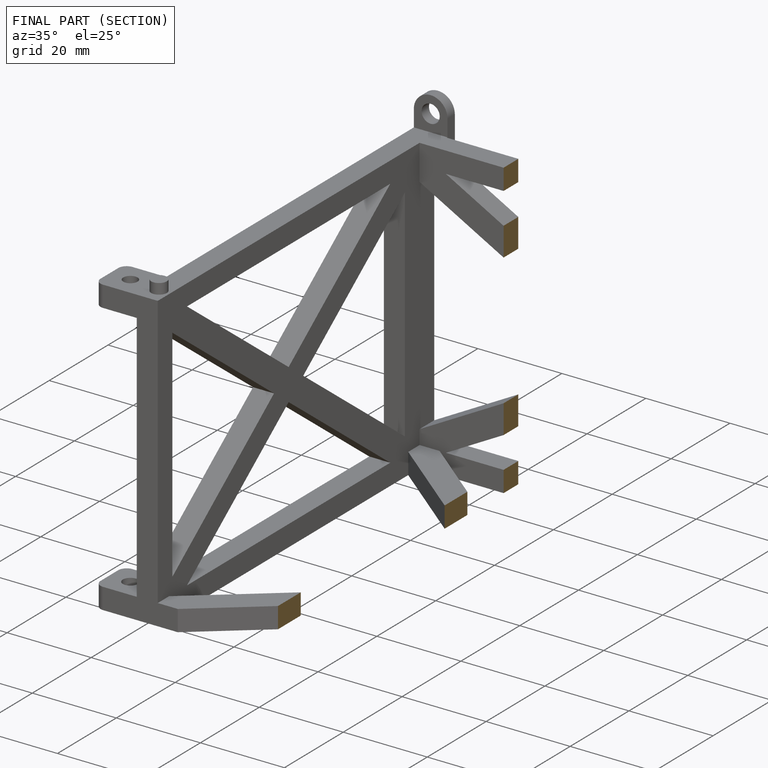
[diagram: finished part — half-section view (interior)]
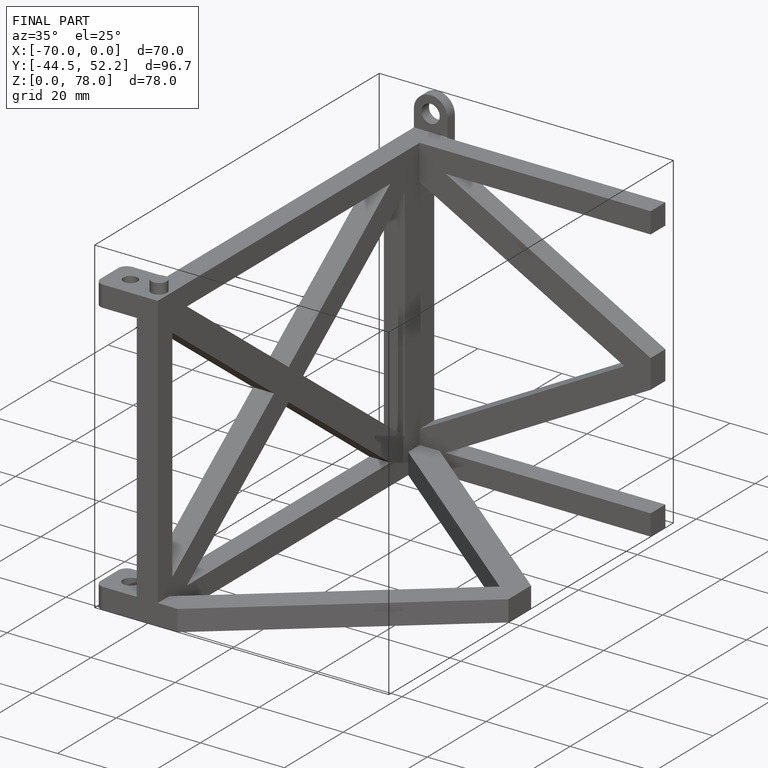
[diagram: finished part — iso view with bounding-box wireframe]
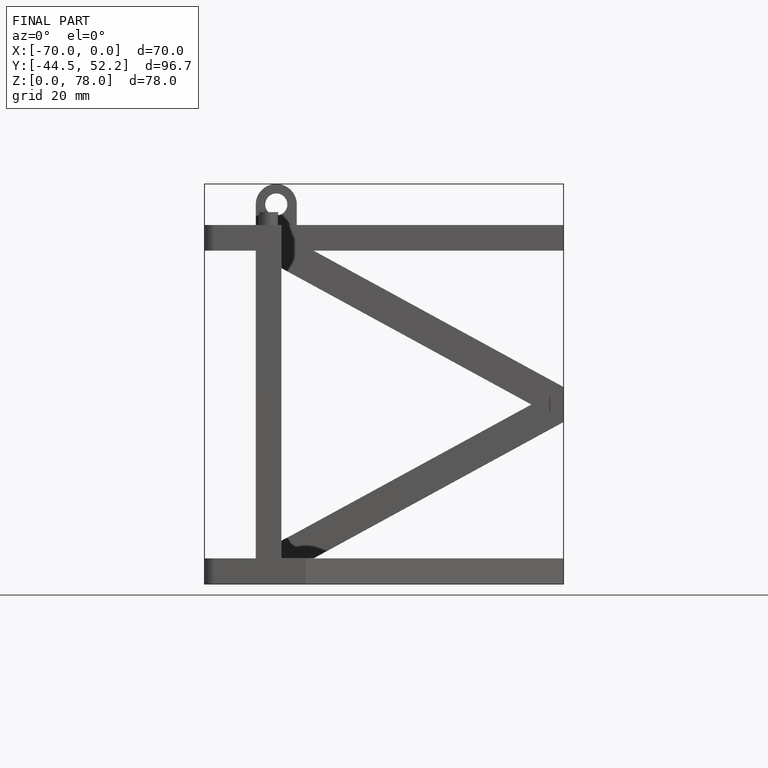
[diagram: finished part — front view with bounding-box wireframe]
